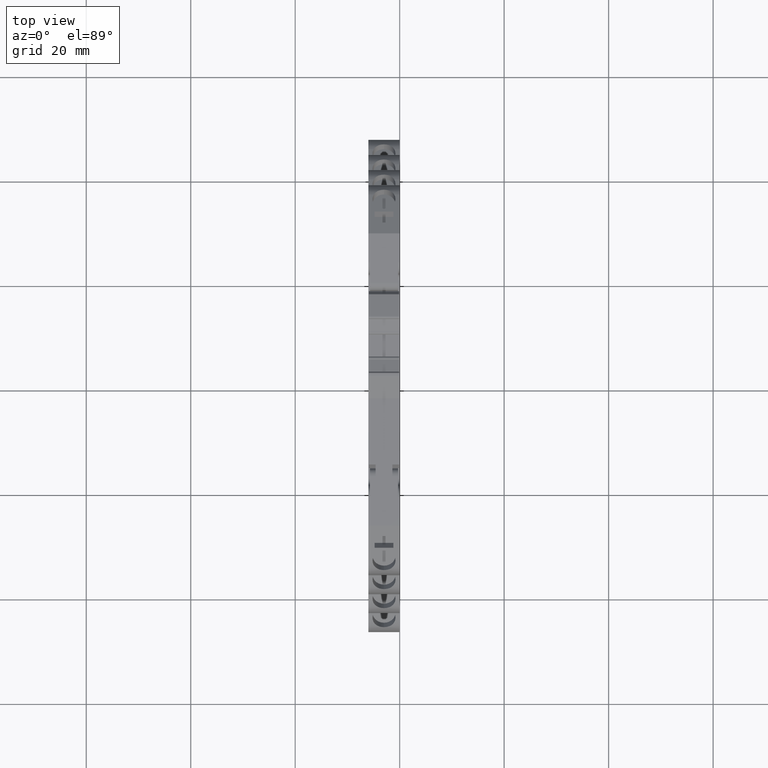
[diagram: clean part render]
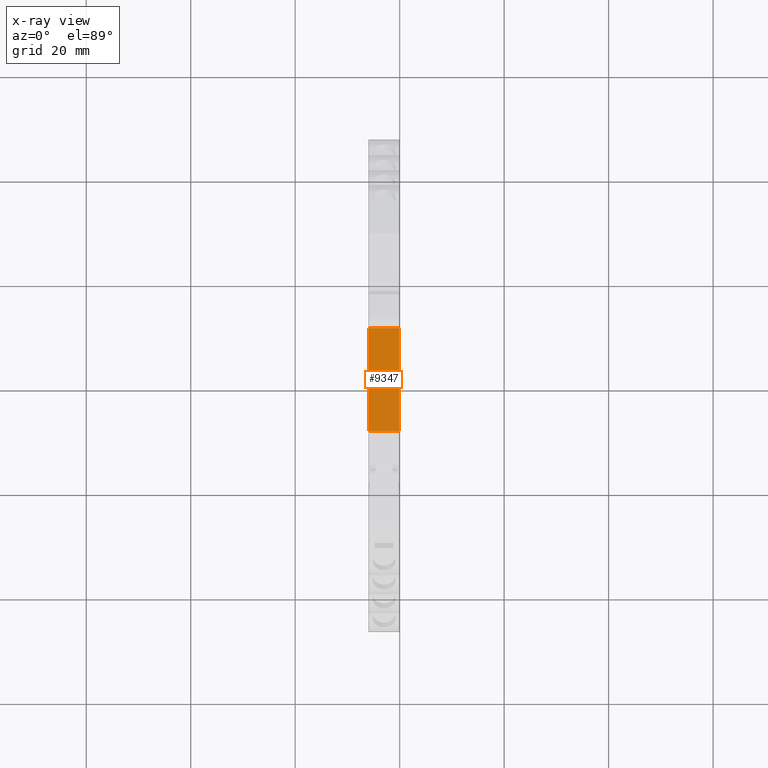
[diagram: x-ray — body ghosted, one internal face saturated and labeled with its STEP entity id]
A machine part, top view, then the same camera in x-ray: the body is ghosted and one INTERNAL B-rep face — a face not visible from any outside direction — is saturated and labeled: STEP entity #9347.
In plain terms, the highlighted planar face has unit normal (0, 0, 1).
Its self-contained STEP definition (entity closure, byte-faithful):
#72 = CARTESIAN_POINT ( 'NONE',  ( -0.2322834645669291376, 0.4057086614173228689, 3.592933070866141776 ) ) ;
#366 = ORIENTED_EDGE ( 'NONE', *, *, #7726, .T. ) ;
#722 = EDGE_CURVE ( 'NONE', #5448, #5575, #4097, .T. ) ;
#730 = DIRECTION ( 'NONE',  ( -1.000000000000000000, 0.000000000000000000, 0.000000000000000000 ) ) ;
#886 = DIRECTION ( 'NONE',  ( 0.000000000000000000, 0.000000000000000000, 1.000000000000000000 ) ) ;
#928 = CARTESIAN_POINT ( 'NONE',  ( -0.003937007874015747977, -0.3731496062992126217, 3.592933070866141776 ) ) ;
#985 = VECTOR ( 'NONE', #7652, 39.37007874015748143 ) ;
#1039 = DIRECTION ( 'NONE',  ( -1.000000000000000000, 0.000000000000000000, 0.000000000000000000 ) ) ;
#1101 = EDGE_LOOP ( 'NONE', ( #1647, #1412, #6282, #366 ) ) ;
#1203 = CARTESIAN_POINT ( 'NONE',  ( -0.003937007874015747977, 0.04381739015909803109, 3.592933070866141776 ) ) ;
#1259 = CARTESIAN_POINT ( 'NONE',  ( -0.2322834645669291376, -0.3731496062992126217, 3.592933070866141776 ) ) ;
#1412 = ORIENTED_EDGE ( 'NONE', *, *, #3773, .F. ) ;
#1647 = ORIENTED_EDGE ( 'NONE', *, *, #5850, .T. ) ;
#1792 = VECTOR ( 'NONE', #2376, 39.37007874015748143 ) ;
#2166 = LINE ( 'NONE', #5513, #1792 ) ;
#2323 = CARTESIAN_POINT ( 'NONE',  ( -0.003937007874015747977, 0.4057086614173228689, 3.592933070866141776 ) ) ;
#2376 = DIRECTION ( 'NONE',  ( -1.000000000000000000, 0.000000000000000000, 0.000000000000000000 ) ) ;
#2444 = VECTOR ( 'NONE', #6920, 39.37007874015748143 ) ;
#3773 = EDGE_CURVE ( 'NONE', #5575, #7252, #5234, .T. ) ;
#4097 = LINE ( 'NONE', #9003, #7955 ) ;
#4487 = CARTESIAN_POINT ( 'NONE',  ( -0.2322834645669291376, 0.04381739015909803109, 3.592933070866141776 ) ) ;
#5234 = LINE ( 'NONE', #4487, #2444 ) ;
#5448 = VERTEX_POINT ( 'NONE', #2323 ) ;
#5513 = CARTESIAN_POINT ( 'NONE',  ( -0.2322834645669291376, -0.3731496062992126217, 3.592933070866141776 ) ) ;
#5575 = VERTEX_POINT ( 'NONE', #72 ) ;
#5850 = EDGE_CURVE ( 'NONE', #9355, #7252, #2166, .T. ) ;
#6282 = ORIENTED_EDGE ( 'NONE', *, *, #722, .F. ) ;
#6547 = CARTESIAN_POINT ( 'NONE',  ( -0.2322834645669291376, 0.4057086614173228689, 3.592933070866141776 ) ) ;
#6714 = AXIS2_PLACEMENT_3D ( 'NONE', #6547, #886, #1039 ) ;
#6920 = DIRECTION ( 'NONE',  ( 0.000000000000000000, -1.000000000000000000, 0.000000000000000000 ) ) ;
#7252 = VERTEX_POINT ( 'NONE', #1259 ) ;
#7652 = DIRECTION ( 'NONE',  ( 0.000000000000000000, -1.000000000000000000, 0.000000000000000000 ) ) ;
#7726 = EDGE_CURVE ( 'NONE', #5448, #9355, #9243, .T. ) ;
#7955 = VECTOR ( 'NONE', #730, 39.37007874015748143 ) ;
#8925 = FACE_OUTER_BOUND ( 'NONE', #1101, .T. ) ;
#9003 = CARTESIAN_POINT ( 'NONE',  ( -0.2322834645669291376, 0.4057086614173228689, 3.592933070866141776 ) ) ;
#9017 = PLANE ( 'NONE',  #6714 ) ;
#9243 = LINE ( 'NONE', #1203, #985 ) ;
#9347 = ADVANCED_FACE ( 'NONE', ( #8925 ), #9017, .F. ) ;
#9355 = VERTEX_POINT ( 'NONE', #928 ) ;